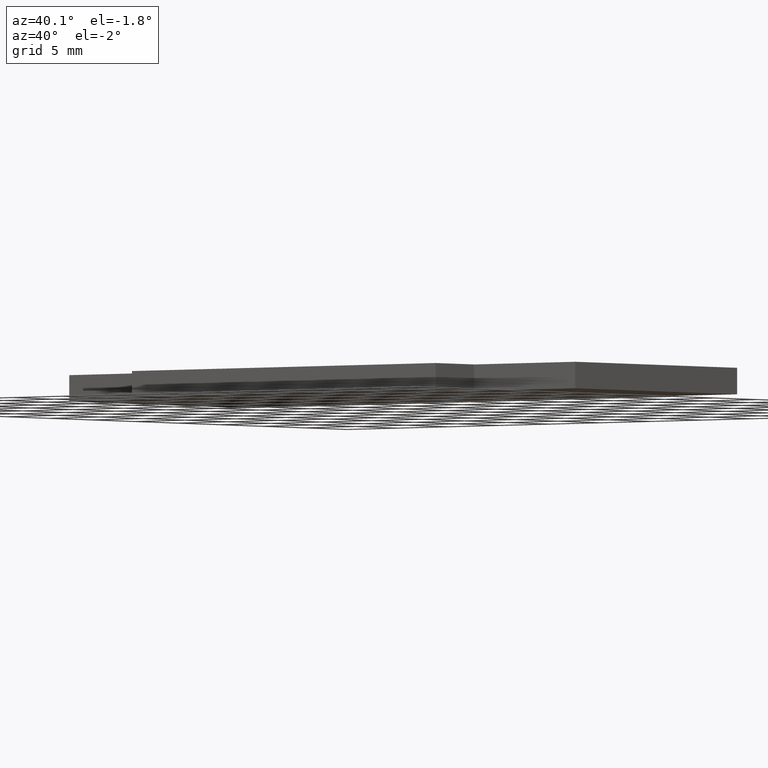
[diagram: clean part render]
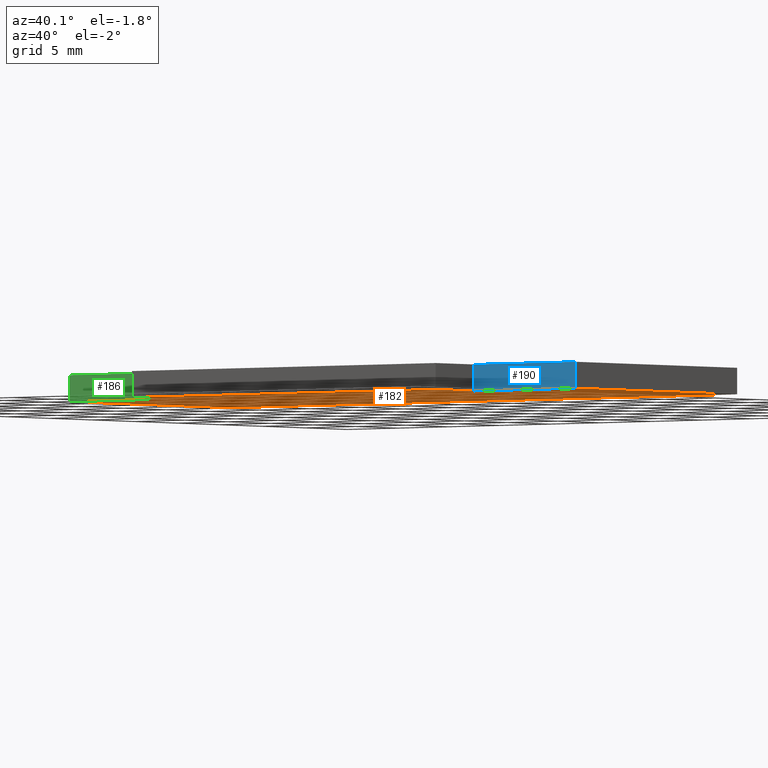
[diagram: same view with three faces highlighted in distinct colors, each labeled with its STEP entity id]
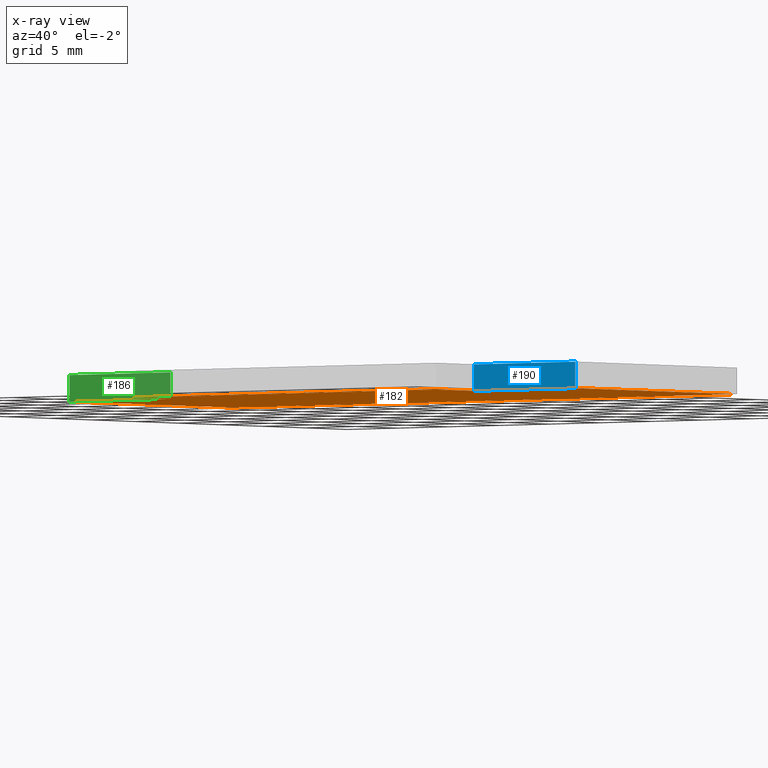
[diagram: x-ray of the same camera — body ghosted, the three highlighted faces saturated]
A machine part, auxiliary view with three faces highlighted in distinct colors.
The next image is the same camera in x-ray (body ghosted, the three faces saturated) — at least one of them is partly hidden behind the body in this view.
Their STEP definitions:

[orange] entity #182 — the highlighted planar face has unit normal (0, 0, 1).
#16=FACE_OUTER_BOUND('',#26,.T.);
#26=EDGE_LOOP('',(#124,#125,#126,#127,#128,#129,#130,#131));
#36=LINE('',#272,#60);
#37=LINE('',#274,#61);
#38=LINE('',#276,#62);
#39=LINE('',#278,#63);
#40=LINE('',#280,#64);
#41=LINE('',#282,#65);
#42=LINE('',#284,#66);
#43=LINE('',#285,#67);
#60=VECTOR('',#226,10.);
#61=VECTOR('',#227,10.);
#62=VECTOR('',#228,10.);
#63=VECTOR('',#229,10.);
#64=VECTOR('',#230,10.);
#65=VECTOR('',#231,10.);
#66=VECTOR('',#232,10.);
#67=VECTOR('',#233,10.);
#84=VERTEX_POINT('',#270);
#85=VERTEX_POINT('',#271);
#86=VERTEX_POINT('',#273);
#87=VERTEX_POINT('',#275);
#88=VERTEX_POINT('',#277);
#89=VERTEX_POINT('',#279);
#90=VERTEX_POINT('',#281);
#91=VERTEX_POINT('',#283);
#100=EDGE_CURVE('',#84,#85,#36,.T.);
#101=EDGE_CURVE('',#86,#84,#37,.T.);
#102=EDGE_CURVE('',#87,#86,#38,.T.);
#103=EDGE_CURVE('',#88,#87,#39,.T.);
#104=EDGE_CURVE('',#89,#88,#40,.T.);
#105=EDGE_CURVE('',#90,#89,#41,.T.);
#106=EDGE_CURVE('',#91,#90,#42,.T.);
#107=EDGE_CURVE('',#85,#91,#43,.T.);
#124=ORIENTED_EDGE('',*,*,#100,.F.);
#125=ORIENTED_EDGE('',*,*,#101,.F.);
#126=ORIENTED_EDGE('',*,*,#102,.F.);
#127=ORIENTED_EDGE('',*,*,#103,.F.);
#128=ORIENTED_EDGE('',*,*,#104,.F.);
#129=ORIENTED_EDGE('',*,*,#105,.F.);
#130=ORIENTED_EDGE('',*,*,#106,.F.);
#131=ORIENTED_EDGE('',*,*,#107,.F.);
#172=PLANE('',#212);
#182=ADVANCED_FACE('',(#16),#172,.F.);
#212=AXIS2_PLACEMENT_3D('',#269,#224,#225);
#224=DIRECTION('center_axis',(0.,0.,1.));
#225=DIRECTION('ref_axis',(1.,0.,0.));
#226=DIRECTION('',(0.,1.,0.));
#227=DIRECTION('',(1.,-8.88178419700125E-16,0.));
#228=DIRECTION('',(0.,1.,0.));
#229=DIRECTION('',(1.,0.,0.));
#230=DIRECTION('',(0.,-1.,0.));
#231=DIRECTION('',(1.,1.11022302462516E-16,0.));
#232=DIRECTION('',(-2.3373116307898E-16,-1.,0.));
#233=DIRECTION('',(-1.,2.22044604925031E-17,0.));
#269=CARTESIAN_POINT('Origin',(1.11022302462516E-15,-1.63775510204082,-1.));
#270=CARTESIAN_POINT('',(25.,-9.5,-1.));
#271=CARTESIAN_POINT('',(25.,9.5,-1.));
#272=CARTESIAN_POINT('',(25.,9.5,-1.));
#273=CARTESIAN_POINT('',(15.,-9.49999999999999,-1.));
#274=CARTESIAN_POINT('',(25.,-9.5,-1.));
#275=CARTESIAN_POINT('',(15.,-14.,-1.));
#276=CARTESIAN_POINT('',(15.,-9.49999999999999,-1.));
#277=CARTESIAN_POINT('',(-15.,-14.,-1.));
#278=CARTESIAN_POINT('',(15.,-14.,-1.));
#279=CARTESIAN_POINT('',(-15.,-9.49999999999999,-1.));
#280=CARTESIAN_POINT('',(-15.,-14.,-1.));
#281=CARTESIAN_POINT('',(-25.,-9.5,-1.));
#282=CARTESIAN_POINT('',(-15.,-9.49999999999999,-1.));
#283=CARTESIAN_POINT('',(-25.,9.50000000000001,-1.));
#284=CARTESIAN_POINT('',(-25.,-9.5,-1.));
#285=CARTESIAN_POINT('',(-25.,9.50000000000001,-1.));

[blue] entity #190 — the highlighted planar face has unit normal (-0, -1, 0).
#24=FACE_OUTER_BOUND('',#34,.T.);
#34=EDGE_LOOP('',(#160,#161,#162,#163));
#37=LINE('',#274,#61);
#46=LINE('',#291,#70);
#58=LINE('',#315,#82);
#59=LINE('',#317,#83);
#61=VECTOR('',#227,10.);
#70=VECTOR('',#238,10.);
#82=VECTOR('',#262,10.);
#83=VECTOR('',#265,10.);
#84=VERTEX_POINT('',#270);
#86=VERTEX_POINT('',#273);
#92=VERTEX_POINT('',#287);
#99=VERTEX_POINT('',#313);
#101=EDGE_CURVE('',#86,#84,#37,.T.);
#110=EDGE_CURVE('',#92,#86,#46,.T.);
#122=EDGE_CURVE('',#84,#99,#58,.T.);
#123=EDGE_CURVE('',#99,#92,#59,.T.);
#160=ORIENTED_EDGE('',*,*,#123,.T.);
#161=ORIENTED_EDGE('',*,*,#110,.T.);
#162=ORIENTED_EDGE('',*,*,#101,.T.);
#163=ORIENTED_EDGE('',*,*,#122,.T.);
#180=PLANE('',#220);
#190=ADVANCED_FACE('',(#24),#180,.T.);
#220=AXIS2_PLACEMENT_3D('',#316,#263,#264);
#227=DIRECTION('',(1.,-8.88178419700125E-16,0.));
#238=DIRECTION('',(0.,0.,-1.));
#262=DIRECTION('',(0.,0.,1.));
#263=DIRECTION('center_axis',(-8.88178419700125E-16,-1.,0.));
#264=DIRECTION('ref_axis',(0.,0.,-1.));
#265=DIRECTION('',(-1.,8.88178419700125E-16,0.));
#270=CARTESIAN_POINT('',(25.,-9.5,-1.));
#273=CARTESIAN_POINT('',(15.,-9.49999999999999,-1.));
#274=CARTESIAN_POINT('',(25.,-9.5,-1.));
#287=CARTESIAN_POINT('',(15.,-9.49999999999999,1.));
#291=CARTESIAN_POINT('',(15.,-9.49999999999999,0.));
#313=CARTESIAN_POINT('',(25.,-9.5,1.));
#315=CARTESIAN_POINT('',(25.,-9.5,0.));
#316=CARTESIAN_POINT('Origin',(25.,-9.5,0.));
#317=CARTESIAN_POINT('',(25.,-9.5,1.));

[green] entity #186 — the highlighted planar face has unit normal (0, -1, 0).
#20=FACE_OUTER_BOUND('',#30,.T.);
#30=EDGE_LOOP('',(#144,#145,#146,#147));
#41=LINE('',#282,#65);
#50=LINE('',#299,#74);
#51=LINE('',#302,#75);
#52=LINE('',#303,#76);
#65=VECTOR('',#231,10.);
#74=VECTOR('',#246,10.);
#75=VECTOR('',#249,10.);
#76=VECTOR('',#250,10.);
#89=VERTEX_POINT('',#279);
#90=VERTEX_POINT('',#281);
#95=VERTEX_POINT('',#297);
#96=VERTEX_POINT('',#301);
#105=EDGE_CURVE('',#90,#89,#41,.T.);
#114=EDGE_CURVE('',#95,#89,#50,.T.);
#115=EDGE_CURVE('',#95,#96,#51,.T.);
#116=EDGE_CURVE('',#96,#90,#52,.T.);
#144=ORIENTED_EDGE('',*,*,#115,.T.);
#145=ORIENTED_EDGE('',*,*,#116,.T.);
#146=ORIENTED_EDGE('',*,*,#105,.T.);
#147=ORIENTED_EDGE('',*,*,#114,.F.);
#176=PLANE('',#216);
#186=ADVANCED_FACE('',(#20),#176,.T.);
#216=AXIS2_PLACEMENT_3D('',#300,#247,#248);
#231=DIRECTION('',(1.,1.11022302462516E-16,0.));
#246=DIRECTION('',(0.,0.,-1.));
#247=DIRECTION('center_axis',(1.11022302462516E-16,-1.,0.));
#248=DIRECTION('ref_axis',(0.,0.,-1.));
#249=DIRECTION('',(-1.,-1.11022302462516E-16,0.));
#250=DIRECTION('',(0.,0.,-1.));
#279=CARTESIAN_POINT('',(-15.,-9.49999999999999,-1.));
#281=CARTESIAN_POINT('',(-25.,-9.5,-1.));
#282=CARTESIAN_POINT('',(-15.,-9.49999999999999,-1.));
#297=CARTESIAN_POINT('',(-15.,-9.49999999999999,1.));
#299=CARTESIAN_POINT('',(-15.,-9.49999999999999,0.));
#300=CARTESIAN_POINT('Origin',(-15.,-9.49999999999999,0.));
#301=CARTESIAN_POINT('',(-25.,-9.5,1.));
#302=CARTESIAN_POINT('',(-15.,-9.49999999999999,1.));
#303=CARTESIAN_POINT('',(-25.,-9.5,0.));